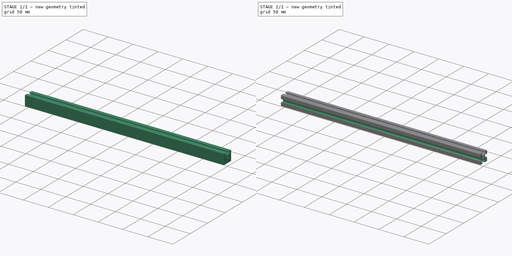
[diagram: build sequence overview — one tinted view per stage of 2, left to right]
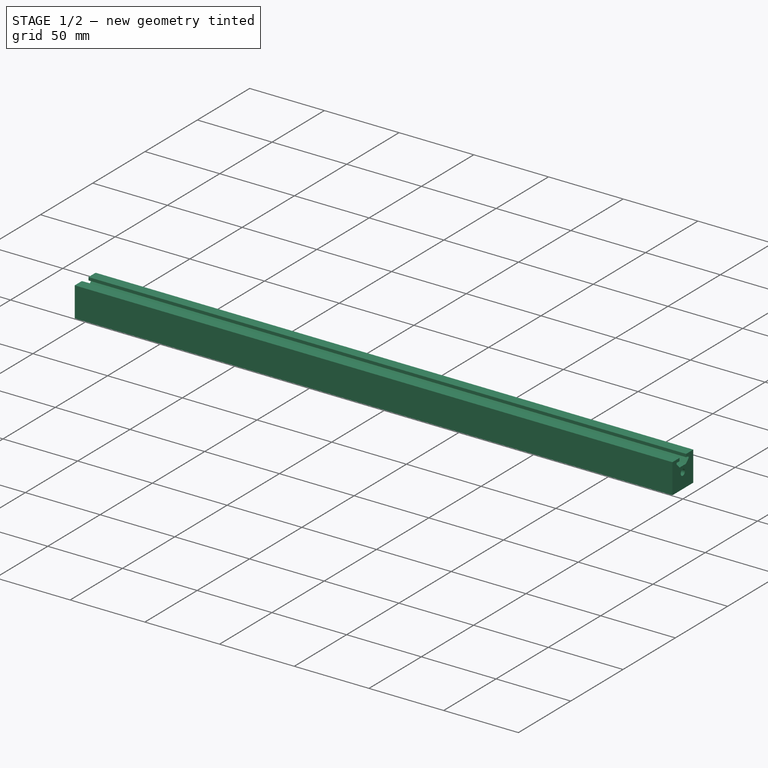
[diagram: stage 1 of 2 — iso view after this stage's code; geometry added in this stage tinted green]
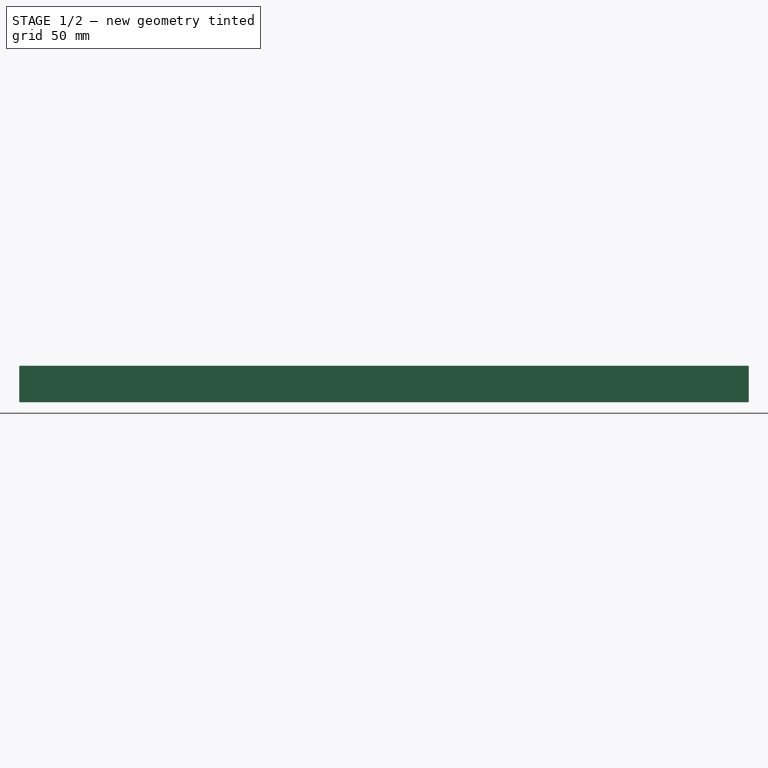
[diagram: stage 1 of 2 — front view after this stage's code; geometry added in this stage tinted green]
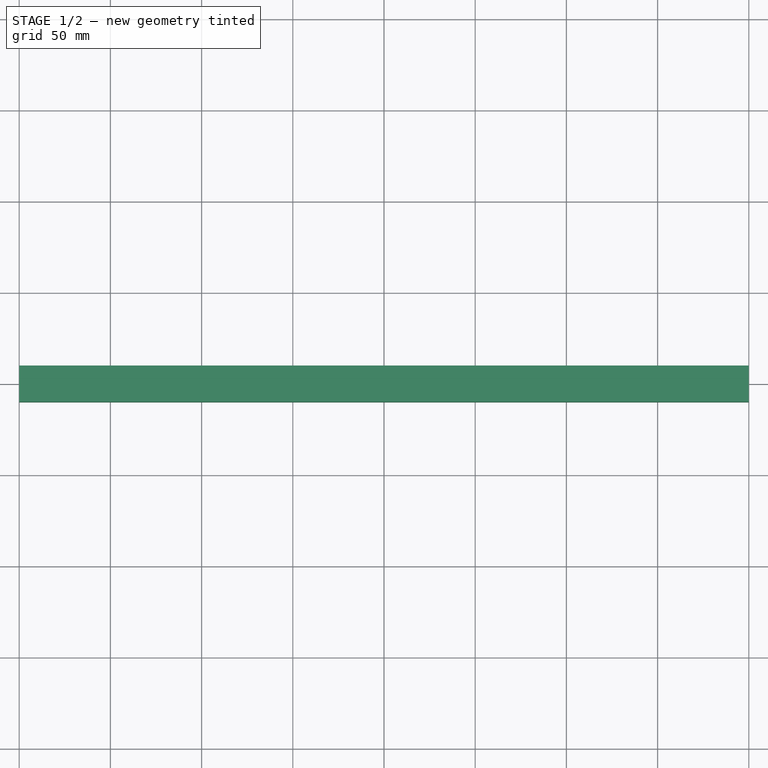
[diagram: stage 1 of 2 — top view after this stage's code; geometry added in this stage tinted green]
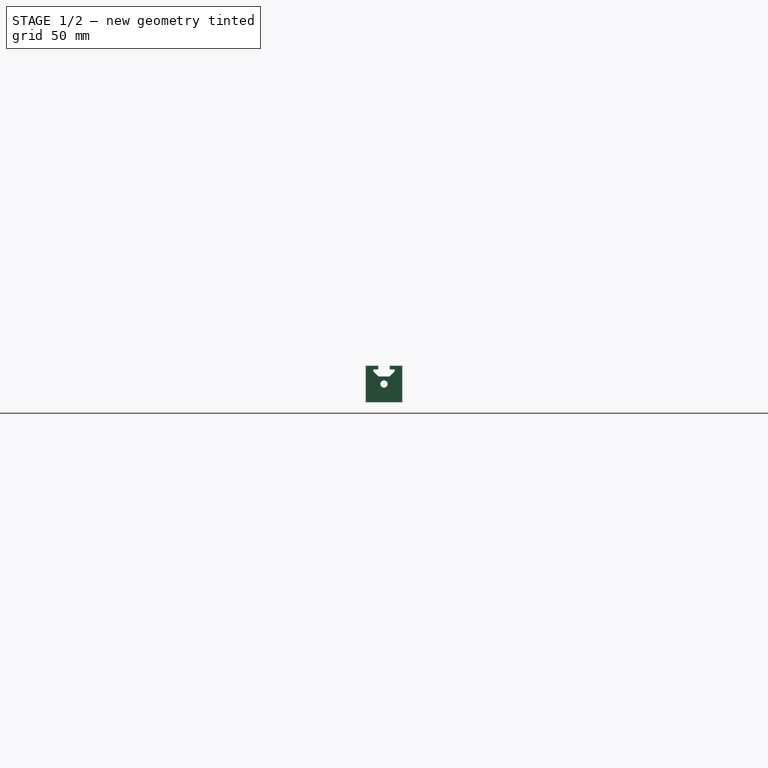
[diagram: stage 1 of 2 — right view after this stage's code; geometry added in this stage tinted green]
FCSTD DOCUMENT  (FreeCAD 0.17R7761 (Git))
Label: 400mm_extrusion
License: CreativeCommons Attribution-ShareAlike
LicenseURL: http://creativecommons.org/licenses/by-sa/4.0/
objects: Sketcher::SketchObject×2, PartDesign::Pad×1, PartDesign::Pocket×1, PartDesign::PolarPattern×1, PartDesign::Fillet×1, PartDesign::Body×1
note: 9 computed .brp shape members not serialized (recipe doc carries the construction recipe); baked Part::Feature solids carry a one-line shape summary decoded from their .brp

FEATURE [Sketcher::SketchObject] Sketch
  MapMode = 5
  Placement = pos=(0,0,0) rot=(0.57735,0.57735,0.57735;2.0944rad)
  Support = -> [YZ_Plane]
  sketch-geometry (5):
    g0: LineSegment StartX=-10 StartY=10 StartZ=0 EndX=10 EndY=10 EndZ=0
    g1: LineSegment StartX=10 StartY=10 StartZ=0 EndX=10 EndY=-10 EndZ=0
    g2: LineSegment StartX=10 StartY=-10 StartZ=0 EndX=-10 EndY=-10 EndZ=0
    g3: LineSegment StartX=-10 StartY=-10 StartZ=0 EndX=-10 EndY=10 EndZ=0
    g4: Circle CenterX=0 CenterY=0 CenterZ=0 NormalX=0 NormalY=0 NormalZ=1 Radius=2
  constraints (14):
    c: Coincident(g0,g1)
    c: Coincident(g1,g2)
    c: Coincident(g2,g3)
    c: Coincident(g3,g0)
    c: Horizontal(g0)
    c: Horizontal(g2)
    c: Vertical(g1)
    c: Vertical(g3)
    c: Equal(g0,g1)
    c: DistanceX(g0,g0) = 20
    c: DistanceY(g2,g-1) = 10
    c: DistanceX(g2,g-1) = 10
    c: Coincident(g4,g-1)
    c: Radius(g4) = 2
FEATURE [PartDesign::Pad] Pad
  Length = 400
  Length2 = 100
  Placement = pos=(0,0,0) rot=(0.57735,0.57735,0.57735;2.0944rad)
  Profile = -> Sketch
  Reversed = true
  Type = 0
FEATURE [Sketcher::SketchObject] Sketch001
  ExternalGeometry = -> [Pad]
  MapMode = 5
  Placement = pos=(0,0,0) rot=(0.57735,0.57735,0.57735;2.0944rad)
  Support = -> [Pad]
  sketch-geometry (10):
    g0: LineSegment StartX=3.125 StartY=10 StartZ=0 EndX=-3.125 EndY=10 EndZ=0
    g1: LineSegment StartX=-3.125 StartY=10 StartZ=0 EndX=-3.125 EndY=8 EndZ=0
    g2: LineSegment StartX=-3.125 StartY=8 StartZ=0 EndX=-5.875 EndY=8 EndZ=0
    g3: LineSegment StartX=-5.875 StartY=8 StartZ=0 EndX=-5.875 EndY=7 EndZ=0
    g4: LineSegment StartX=5.875 StartY=7 StartZ=0 EndX=5.875 EndY=8 EndZ=0
    g5: LineSegment StartX=5.875 StartY=8 StartZ=0 EndX=3.125 EndY=8 EndZ=0
    g6: LineSegment StartX=3.125 StartY=8 StartZ=0 EndX=3.125 EndY=10 EndZ=0
    g7: LineSegment StartX=-5.875 StartY=7 StartZ=0 EndX=-3 EndY=4.125 EndZ=0
    g8: LineSegment StartX=-3 StartY=4.125 StartZ=0 EndX=3 EndY=4.125 EndZ=0
    g9: LineSegment StartX=3 StartY=4.125 StartZ=0 EndX=5.875 EndY=7 EndZ=0
  constraints (30):
    c: Horizontal(g0)
    c: Coincident(g0,g1)
    c: Vertical(g1)
    c: Coincident(g1,g2)
    c: Horizontal(g2)
    c: Coincident(g2,g3)
    c: Vertical(g3)
    c: Vertical(g4)
    c: Coincident(g4,g5)
    c: Coincident(g5,g6)
    c: Coincident(g0,g6)
    c: Vertical(g6)
    c: Horizontal(g5)
    c: DistanceX(g0,g0) = 6.25
    c: Equal(g6,g1)
    c: Equal(g5,g2)
    c: Equal(g3,g4)
    c: DistanceX(g-1,g0) = 3.125
    c: Coincident(g7,g8)
    c: Horizontal(g8)
    c: Coincident(g8,g9)
    c: Coincident(g4,g9)
    c: Coincident(g3,g7)
    c: Equal(g9,g7)
    c: DistanceX(g8,g8) = 6
    c: DistanceY(g3,g3) = 1
    c: DistanceX(g2,g2) = 2.75
    c: PointOnObject(g0,g-3)
    c: DistanceY(g6,g6) = 2
    c: Angle(g9,g7) = 1.5708
FEATURE [PartDesign::Pocket] Pocket
  BaseFeature = -> Pad
  Length = 5
  Placement = pos=(0,0,0) rot=(0.57735,0.57735,0.57735;2.0944rad)
  Profile = -> Sketch001
  Type = 1
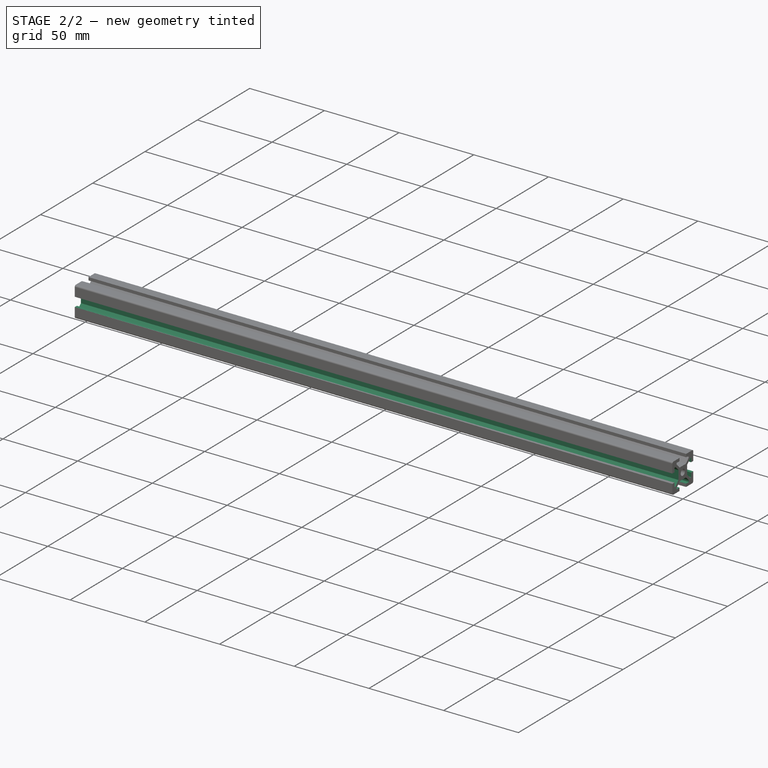
[diagram: stage 2 of 2 — iso view after this stage's code; geometry added in this stage tinted green]
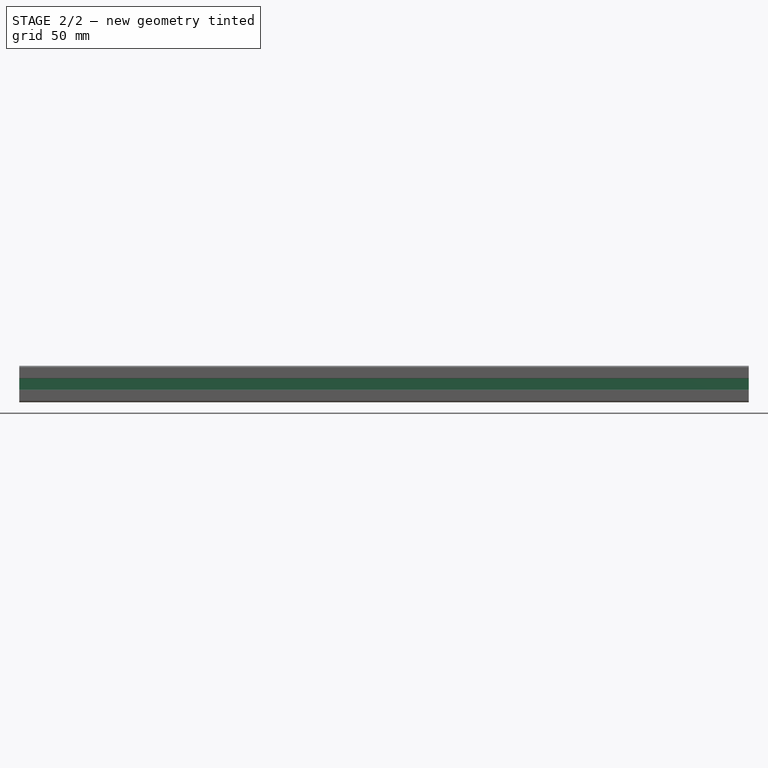
[diagram: stage 2 of 2 — front view after this stage's code; geometry added in this stage tinted green]
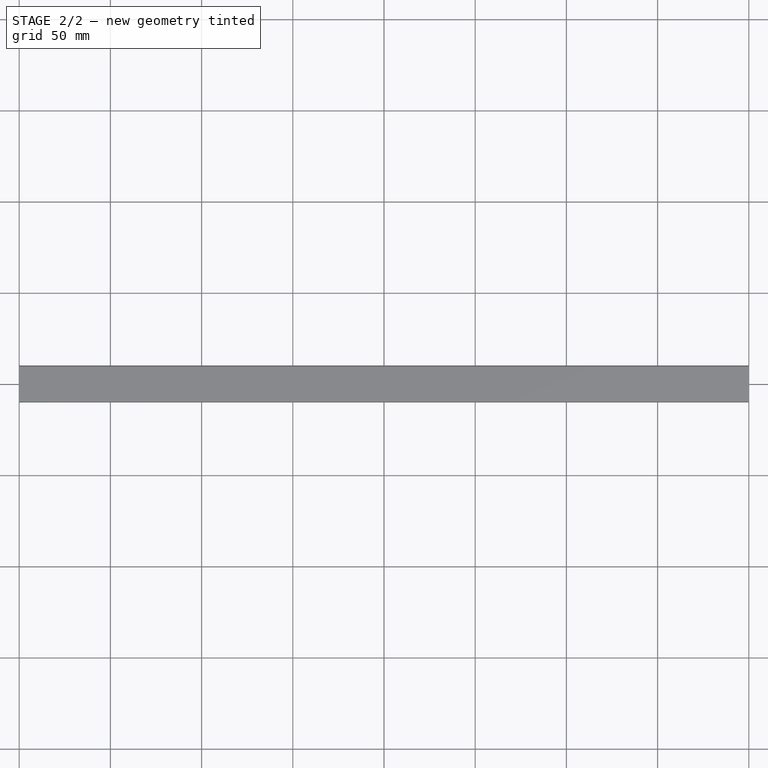
[diagram: stage 2 of 2 — top view after this stage's code; geometry added in this stage tinted green]
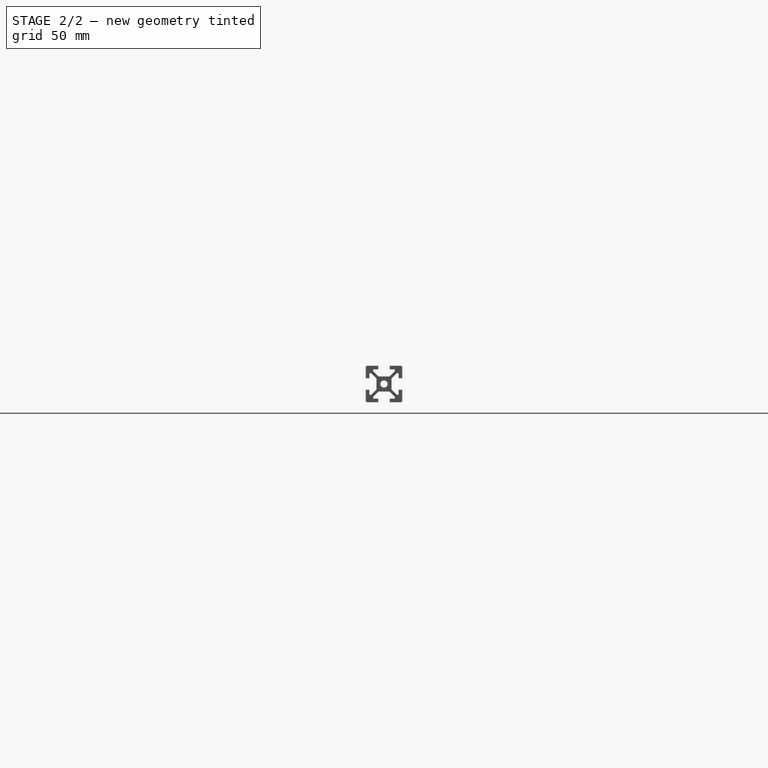
[diagram: stage 2 of 2 — right view after this stage's code; geometry added in this stage tinted green]
FEATURE [PartDesign::PolarPattern] PolarPattern
  Angle = 360
  Axis = -> Sketch001 [N_Axis]
  BaseFeature = -> Pocket
  Occurrences = 4
  Originals = -> [Pocket]
  Placement = pos=(0,0,0) rot=(0.57735,0.57735,0.57735;2.0944rad)
FEATURE [PartDesign::Fillet] Fillet
  Base = -> PolarPattern [Edge103,Edge114,Edge125,Edge4]
  BaseFeature = -> PolarPattern
  Placement = pos=(0,0,0) rot=(0.57735,0.57735,0.57735;2.0944rad)
  Radius = 1
FEATURE [PartDesign::Body] Body
  Model = -> [Sketch,Pad,Sketch001,Pocket,PolarPattern,Fillet]
  Origin = -> BodyOrigin
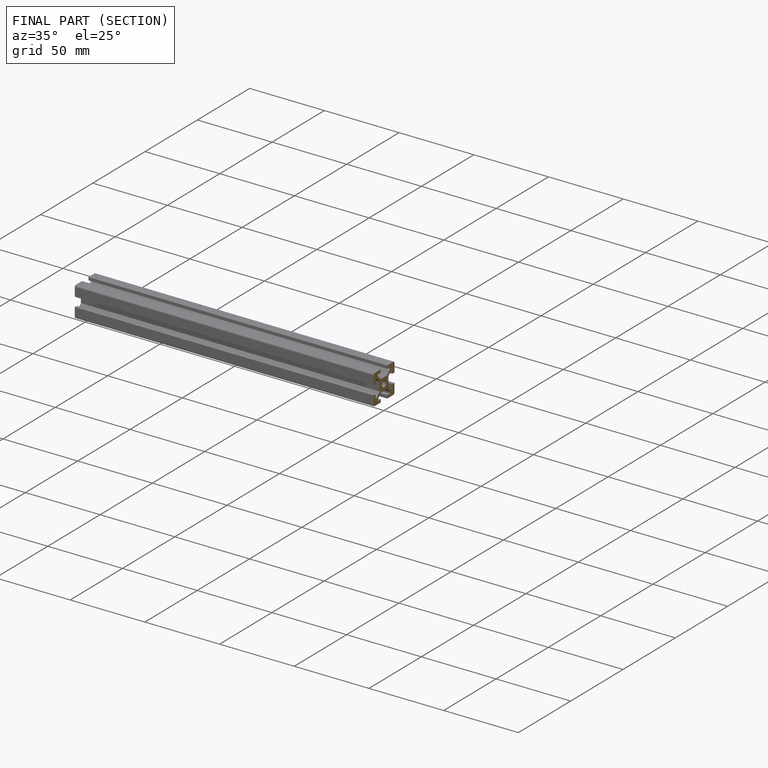
[diagram: finished part — half-section view (interior)]
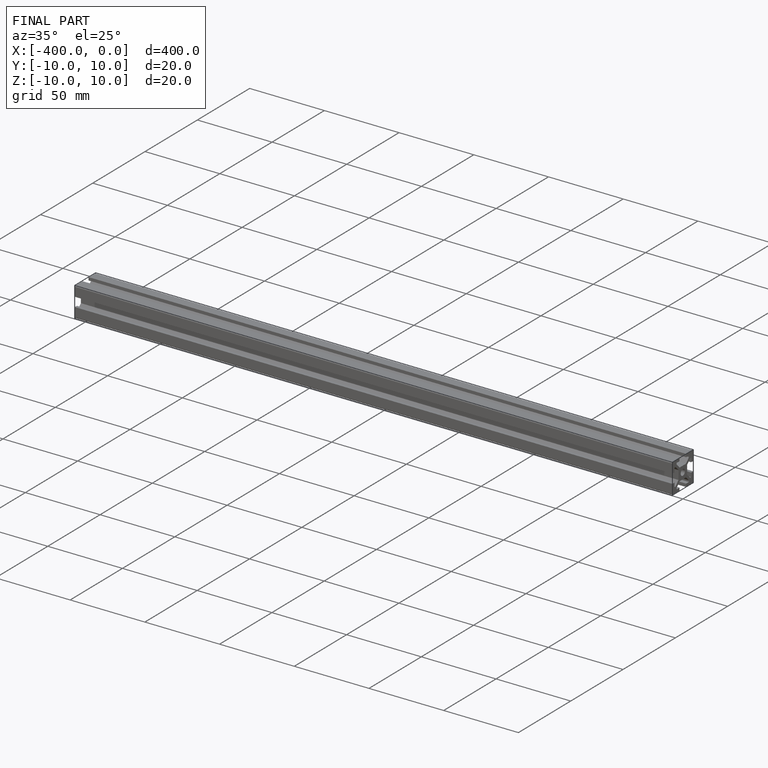
[diagram: finished part — iso view with bounding-box wireframe]
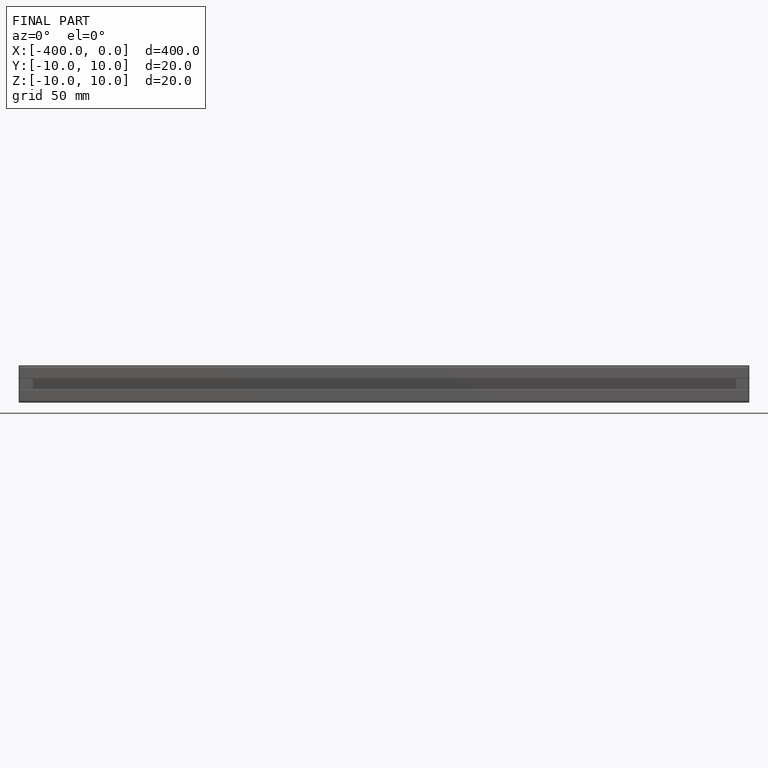
[diagram: finished part — front view with bounding-box wireframe]
